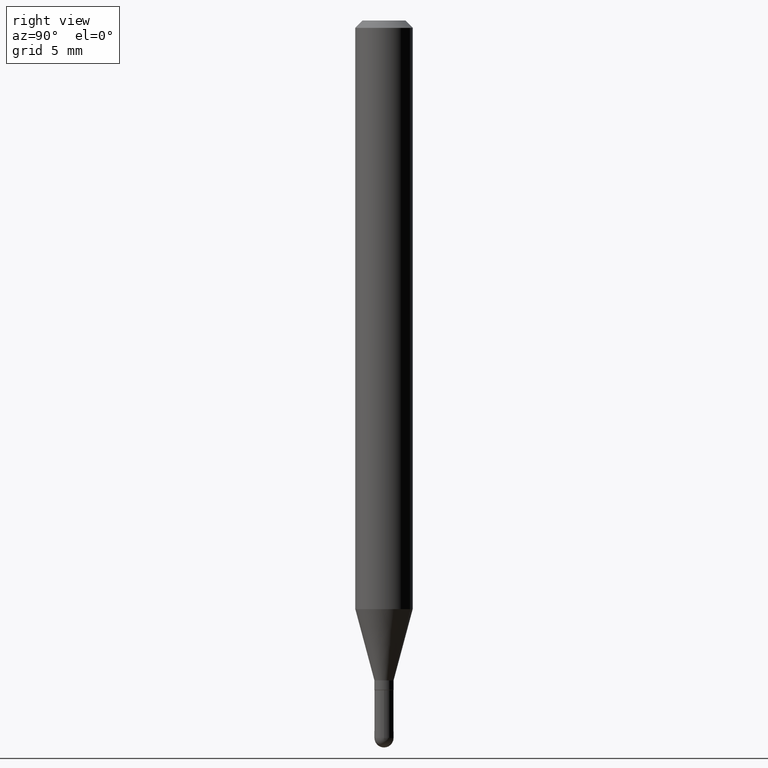
[diagram: clean part render]
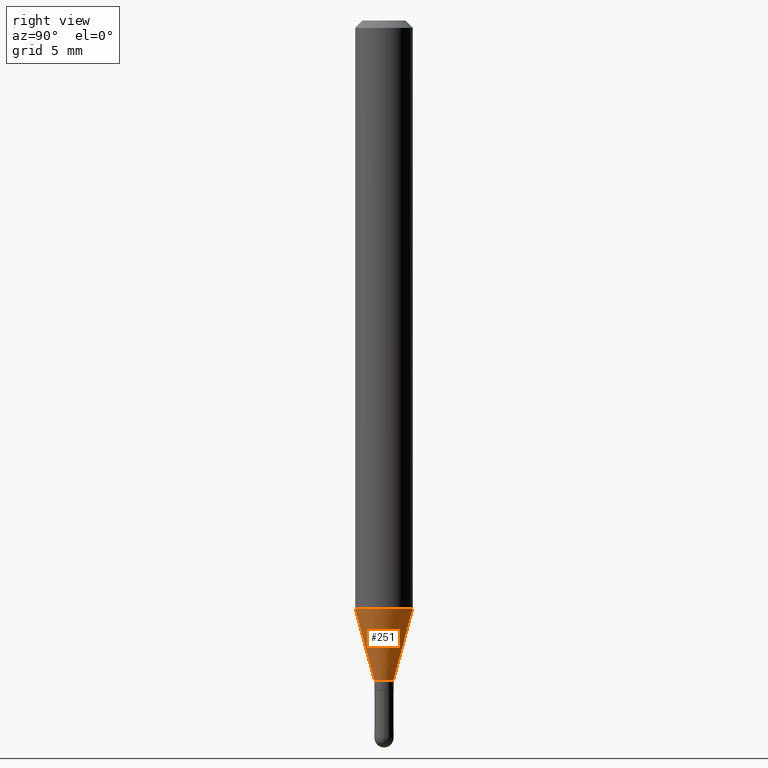
[diagram: same view with one face highlighted and labeled with its STEP entity id]
A machine part, right view. The second image highlights one B-rep face of the part: STEP entity #251.
In plain terms, the highlighted conical surface has half-angle 15 deg.
Its self-contained STEP definition (entity closure, byte-faithful):
#48 = AXIS2_PLACEMENT_3D ( 'NONE', #323, #52, #403 ) ;
#52 = DIRECTION ( 'NONE',  ( -2.446456800980005402E-29, 3.490066474063722068E-15, 1.000000000000000000 ) ) ;
#66 = VERTEX_POINT ( 'NONE', #356 ) ;
#68 = CIRCLE ( 'NONE', #211, 0.01969999999999979406 ) ;
#77 = DIRECTION ( 'NONE',  ( -1.807323732225331323E-15, -0.2588190451025183525, 0.9659258262890689783 ) ) ;
#100 = CARTESIAN_POINT ( 'NONE',  ( 3.322532981410944760E-29, -4.739859278425939887E-15, -1.358099999999999863 ) ) ;
#101 = CARTESIAN_POINT ( 'NONE',  ( 4.195754854663685822E-16, 0.05904999999999575866, -1.211243800722164643 ) ) ;
#112 = CIRCLE ( 'NONE', #137, 0.05904999999999999832 ) ;
#137 = AXIS2_PLACEMENT_3D ( 'NONE', #247, #252, #254 ) ;
#145 = EDGE_CURVE ( 'NONE', #404, #182, #188, .T. ) ;
#175 = LINE ( 'NONE', #412, #235 ) ;
#182 = VERTEX_POINT ( 'NONE', #434 ) ;
#188 = LINE ( 'NONE', #273, #395 ) ;
#211 = AXIS2_PLACEMENT_3D ( 'NONE', #100, #214, #417 ) ;
#214 = DIRECTION ( 'NONE',  ( -2.446456800980005402E-29, 3.490066474063722068E-15, 1.000000000000000000 ) ) ;
#222 = ORIENTED_EDGE ( 'NONE', *, *, #483, .T. ) ;
#235 = VECTOR ( 'NONE', #339, 39.37007874015748854 ) ;
#247 = CARTESIAN_POINT ( 'NONE',  ( 2.963255633921609456E-29, -4.227321380817945395E-15, -1.211243800722164421 ) ) ;
#251 = ADVANCED_FACE ( 'NONE', ( #486 ), #384, .T. ) ;
#252 = DIRECTION ( 'NONE',  ( -2.446456800980005402E-29, 3.490066474063722068E-15, 1.000000000000000000 ) ) ;
#254 = DIRECTION ( 'NONE',  ( -6.982962677686265922E-15, -1.000000000000000000, 4.626330217890369336E-15 ) ) ;
#273 = CARTESIAN_POINT ( 'NONE',  ( -1.375643647503847757E-16, -0.01970000000000452986, -1.358099999999999863 ) ) ;
#274 = ORIENTED_EDGE ( 'NONE', *, *, #467, .F. ) ;
#294 = CARTESIAN_POINT ( 'NONE',  ( -1.375643647503847757E-16, -0.01970000000000452986, -1.358099999999999863 ) ) ;
#323 = CARTESIAN_POINT ( 'NONE',  ( 3.322532981410944760E-29, -4.739859278425939887E-15, -1.358099999999999863 ) ) ;
#339 = DIRECTION ( 'NONE',  ( 1.839019923739601499E-15, 0.2588190451025251249, 0.9659258262890670910 ) ) ;
#356 = CARTESIAN_POINT ( 'NONE',  ( 2.797762022055701664E-16, 0.01969999999999505480, -1.358099999999999863 ) ) ;
#384 = CONICAL_SURFACE ( 'NONE', #48, 0.01969999999999979406, 0.2617993877991504625 ) ;
#395 = VECTOR ( 'NONE', #77, 39.37007874015748854 ) ;
#403 = DIRECTION ( 'NONE',  ( -6.982962677686265133E-15, -1.000000000000000000, 0.000000000000000000 ) ) ;
#404 = VERTEX_POINT ( 'NONE', #294 ) ;
#410 = EDGE_LOOP ( 'NONE', ( #426, #222, #274, #474 ) ) ;
#412 = CARTESIAN_POINT ( 'NONE',  ( 1.399769189447714548E-16, 0.01969999999999505480, -1.358099999999999863 ) ) ;
#417 = DIRECTION ( 'NONE',  ( -6.982962677686265133E-15, -1.000000000000000000, 0.000000000000000000 ) ) ;
#426 = ORIENTED_EDGE ( 'NONE', *, *, #454, .T. ) ;
#434 = CARTESIAN_POINT ( 'NONE',  ( -4.123439461173444997E-16, -0.05905000000000424493, -1.211243800722164199 ) ) ;
#442 = VERTEX_POINT ( 'NONE', #101 ) ;
#454 = EDGE_CURVE ( 'NONE', #404, #66, #68, .T. ) ;
#467 = EDGE_CURVE ( 'NONE', #182, #442, #112, .T. ) ;
#474 = ORIENTED_EDGE ( 'NONE', *, *, #145, .F. ) ;
#483 = EDGE_CURVE ( 'NONE', #66, #442, #175, .T. ) ;
#486 = FACE_OUTER_BOUND ( 'NONE', #410, .T. ) ;